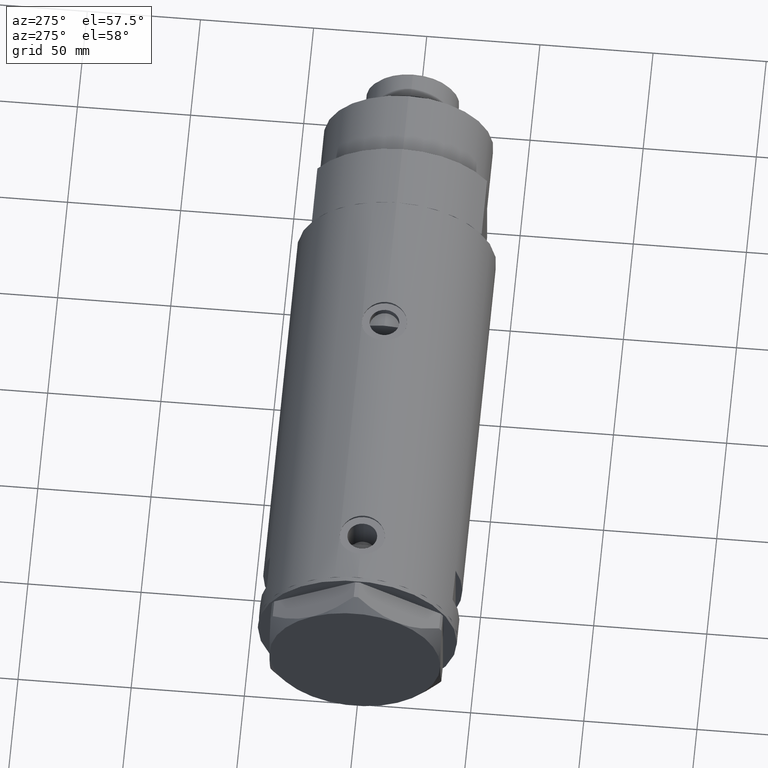
[diagram: clean part render]
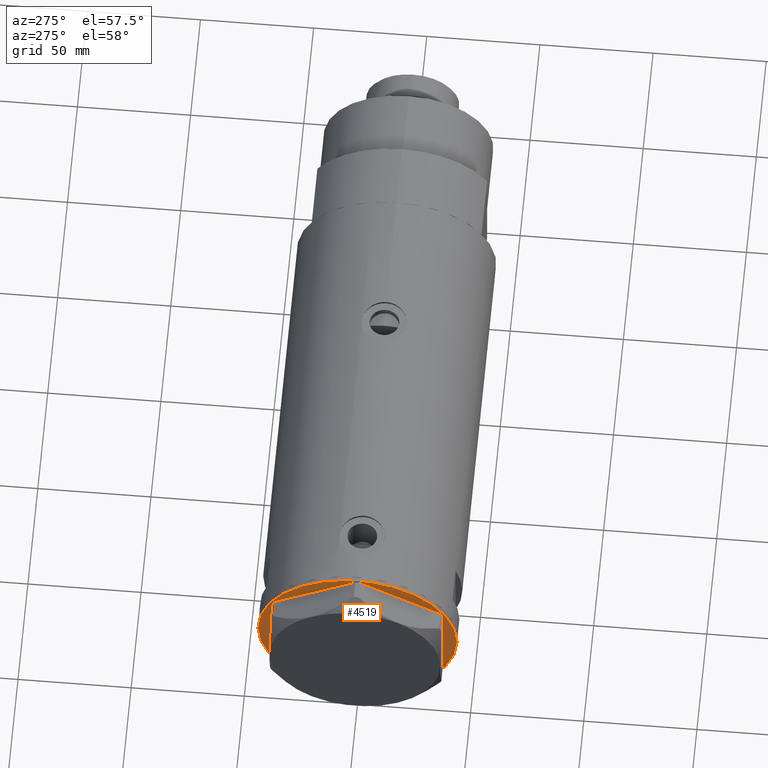
[diagram: same view with one face highlighted and labeled with its STEP entity id]
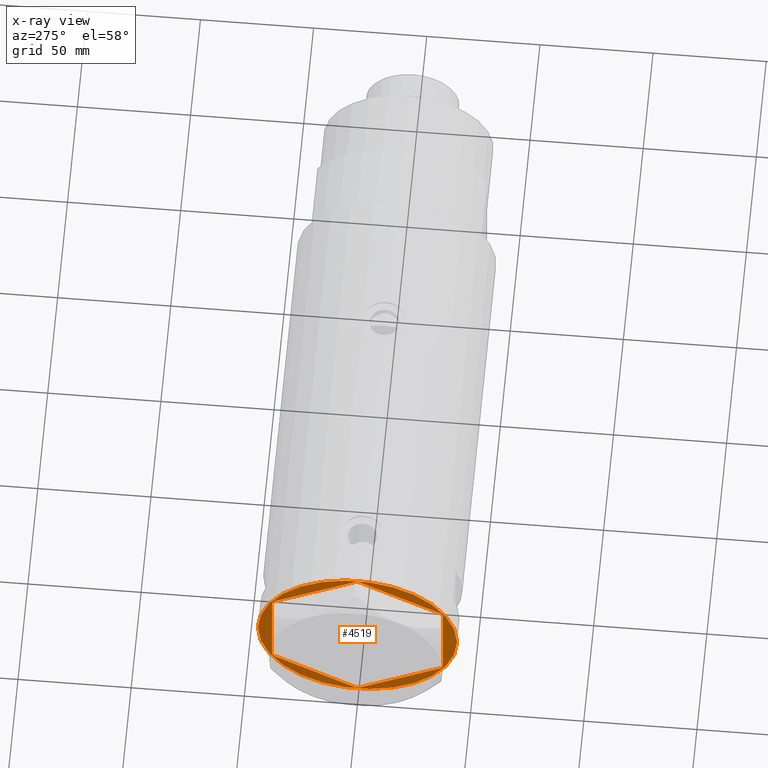
[diagram: x-ray of the same camera — body ghosted, the highlighted face saturated]
A machine part, auxiliary view. The second image highlights one B-rep face of the part: STEP entity #4519.
The next image is the same camera in x-ray: the body ghosted, the highlighted face saturated — about 0% of this face is hidden behind the body in this view.
In plain terms, the highlighted planar face has unit normal (1, 0, -0).
Its self-contained STEP definition (entity closure, byte-faithful):
#14 = CARTESIAN_POINT ( 'NONE',  ( -37.74999999999999289, -21.79497266190838189, 0.000000000000000000 ) ) ;
#179 = PLANE ( 'NONE',  #1396 ) ;
#210 = DIRECTION ( 'NONE',  ( -1.000000000000000000, 0.000000000000000000, 0.000000000000000000 ) ) ;
#218 = VERTEX_POINT ( 'NONE', #662 ) ;
#255 = DIRECTION ( 'NONE',  ( -0.5000000000000002220, 0.8660254037844385966, -0.000000000000000000 ) ) ;
#269 = ORIENTED_EDGE ( 'NONE', *, *, #1788, .F. ) ;
#271 = VECTOR ( 'NONE', #255, 999.9999999999998863 ) ;
#274 = VERTEX_POINT ( 'NONE', #1805 ) ;
#316 = VERTEX_POINT ( 'NONE', #854 ) ;
#517 = EDGE_CURVE ( 'NONE', #274, #2161, #1216, .T. ) ;
#520 = CARTESIAN_POINT ( 'NONE',  ( -37.75000000000000711, 20.67497266190837024, 0.000000000000000000 ) ) ;
#550 = EDGE_CURVE ( 'NONE', #4112, #4084, #909, .T. ) ;
#569 = EDGE_LOOP ( 'NONE', ( #4286, #806, #3315, #2984, #1425, #1776, #269, #4305, #4512, #3394, #1447, #3242 ) ) ;
#634 = VERTEX_POINT ( 'NONE', #3540 ) ;
#638 = LINE ( 'NONE', #965, #1492 ) ;
#650 = CARTESIAN_POINT ( 'NONE',  ( -37.74999999999999289, -20.67497266190837379, 0.000000000000000000 ) ) ;
#662 = CARTESIAN_POINT ( 'NONE',  ( -36.78005154776141694, -22.35497266190838772, 0.000000000000000000 ) ) ;
#667 = VERTEX_POINT ( 'NONE', #4518 ) ;
#689 = LINE ( 'NONE', #1070, #2251 ) ;
#751 = DIRECTION ( 'NONE',  ( -0.8660254037844385966, 0.5000000000000000000, 0.000000000000000000 ) ) ;
#794 = EDGE_CURVE ( 'NONE', #4108, #1476, #3013, .T. ) ;
#806 = ORIENTED_EDGE ( 'NONE', *, *, #1954, .T. ) ;
#854 = CARTESIAN_POINT ( 'NONE',  ( 36.78005154776143115, -22.35497266190837706, 0.000000000000000000 ) ) ;
#909 = LINE ( 'NONE', #2297, #3548 ) ;
#920 = CARTESIAN_POINT ( 'NONE',  ( 44.00000000000000000, 0.000000000000000000, 0.000000000000000000 ) ) ;
#931 = CARTESIAN_POINT ( 'NONE',  ( 0.000000000000000000, 0.000000000000000000, 0.000000000000000000 ) ) ;
#965 = CARTESIAN_POINT ( 'NONE',  ( 37.26502577388077242, -21.51497266190830260, 0.000000000000000000 ) ) ;
#976 = VECTOR ( 'NONE', #751, 1000.000000000000227 ) ;
#1070 = CARTESIAN_POINT ( 'NONE',  ( 37.75000000000002132, -21.79497266190837124, 0.000000000000000000 ) ) ;
#1072 = VECTOR ( 'NONE', #3036, 1000.000000000000000 ) ;
#1080 = VECTOR ( 'NONE', #4509, 1000.000000000000000 ) ;
#1153 = EDGE_CURVE ( 'NONE', #634, #316, #638, .T. ) ;
#1201 = CARTESIAN_POINT ( 'NONE',  ( 0.9699484522385760643, -43.02994532381674020, 0.000000000000000000 ) ) ;
#1207 = DIRECTION ( 'NONE',  ( 0.8660254037844388186, 0.4999999999999997224, 0.000000000000000000 ) ) ;
#1216 = LINE ( 'NONE', #2277, #1416 ) ;
#1234 = ORIENTED_EDGE ( 'NONE', *, *, #2121, .F. ) ;
#1266 = CARTESIAN_POINT ( 'NONE',  ( 0.000000000000000000, -43.02994532381674020, 0.000000000000000000 ) ) ;
#1303 = DIRECTION ( 'NONE',  ( 0.000000000000000000, 0.000000000000000000, -1.000000000000000000 ) ) ;
#1388 = VECTOR ( 'NONE', #3732, 1000.000000000000000 ) ;
#1396 = AXIS2_PLACEMENT_3D ( 'NONE', #931, #4068, #3710 ) ;
#1412 = LINE ( 'NONE', #14, #3109 ) ;
#1416 = VECTOR ( 'NONE', #2630, 1000.000000000000000 ) ;
#1425 = ORIENTED_EDGE ( 'NONE', *, *, #1488, .F. ) ;
#1447 = ORIENTED_EDGE ( 'NONE', *, *, #3475, .F. ) ;
#1476 = VERTEX_POINT ( 'NONE', #2248 ) ;
#1488 = EDGE_CURVE ( 'NONE', #4180, #316, #2573, .T. ) ;
#1492 = VECTOR ( 'NONE', #3001, 1000.000000000000227 ) ;
#1568 = VERTEX_POINT ( 'NONE', #650 ) ;
#1571 = DIRECTION ( 'NONE',  ( 0.000000000000000000, 0.000000000000000000, -1.000000000000000000 ) ) ;
#1697 = LINE ( 'NONE', #3757, #271 ) ;
#1736 = DIRECTION ( 'NONE',  ( -4.775569585389645902E-16, 1.000000000000000000, 0.000000000000000000 ) ) ;
#1776 = ORIENTED_EDGE ( 'NONE', *, *, #2654, .T. ) ;
#1788 = EDGE_CURVE ( 'NONE', #218, #3272, #1412, .T. ) ;
#1805 = CARTESIAN_POINT ( 'NONE',  ( -0.9699484522385801721, 43.02994532381674020, 0.000000000000000000 ) ) ;
#1850 = AXIS2_PLACEMENT_3D ( 'NONE', #2259, #1303, #210 ) ;
#1935 = CARTESIAN_POINT ( 'NONE',  ( 37.75000000000000000, 20.67497266190835958, 0.000000000000000000 ) ) ;
#1954 = EDGE_CURVE ( 'NONE', #667, #2812, #3945, .T. ) ;
#2116 = ORIENTED_EDGE ( 'NONE', *, *, #794, .F. ) ;
#2121 = EDGE_CURVE ( 'NONE', #1476, #4108, #2209, .T. ) ;
#2151 = EDGE_CURVE ( 'NONE', #667, #2161, #2510, .T. ) ;
#2161 = VERTEX_POINT ( 'NONE', #3328 ) ;
#2209 = CIRCLE ( 'NONE', #1850, 44.00000000000000000 ) ;
#2248 = CARTESIAN_POINT ( 'NONE',  ( -44.00000000000000000, 5.388445916248353619E-15, 0.000000000000000000 ) ) ;
#2251 = VECTOR ( 'NONE', #1736, 1000.000000000000000 ) ;
#2259 = CARTESIAN_POINT ( 'NONE',  ( 0.000000000000000000, 0.000000000000000000, 0.000000000000000000 ) ) ;
#2277 = CARTESIAN_POINT ( 'NONE',  ( 0.000000000000000000, 43.02994532381674020, 0.000000000000000000 ) ) ;
#2297 = CARTESIAN_POINT ( 'NONE',  ( -37.26502577388077242, 21.51497266190828483, 0.000000000000000000 ) ) ;
#2321 = LINE ( 'NONE', #2680, #1388 ) ;
#2325 = EDGE_LOOP ( 'NONE', ( #2116, #1234 ) ) ;
#2337 = CARTESIAN_POINT ( 'NONE',  ( -37.75000000000000711, 21.79497266190837124, 0.000000000000000000 ) ) ;
#2510 = LINE ( 'NONE', #3912, #976 ) ;
#2573 = LINE ( 'NONE', #4360, #3608 ) ;
#2575 = VECTOR ( 'NONE', #4313, 999.9999999999998863 ) ;
#2630 = DIRECTION ( 'NONE',  ( 1.000000000000000000, -0.000000000000000000, -0.000000000000000000 ) ) ;
#2654 = EDGE_CURVE ( 'NONE', #4180, #3272, #3751, .T. ) ;
#2680 = CARTESIAN_POINT ( 'NONE',  ( 0.000000000000000000, 43.58994532381674247, 0.000000000000000000 ) ) ;
#2715 = CARTESIAN_POINT ( 'NONE',  ( -36.78005154776143826, 22.35497266190836996, 0.000000000000000000 ) ) ;
#2812 = VERTEX_POINT ( 'NONE', #1935 ) ;
#2814 = DIRECTION ( 'NONE',  ( 0.8660254037844385966, -0.4999999999999998890, 0.000000000000000000 ) ) ;
#2881 = AXIS2_PLACEMENT_3D ( 'NONE', #3431, #1571, #4063 ) ;
#2965 = FACE_OUTER_BOUND ( 'NONE', #2325, .T. ) ;
#2984 = ORIENTED_EDGE ( 'NONE', *, *, #1153, .T. ) ;
#3001 = DIRECTION ( 'NONE',  ( -0.4999999999999981681, -0.8660254037844395958, -0.000000000000000000 ) ) ;
#3013 = CIRCLE ( 'NONE', #2881, 44.00000000000000000 ) ;
#3036 = DIRECTION ( 'NONE',  ( -1.000000000000000000, -0.000000000000000000, -0.000000000000000000 ) ) ;
#3109 = VECTOR ( 'NONE', #2814, 1000.000000000000227 ) ;
#3242 = ORIENTED_EDGE ( 'NONE', *, *, #517, .T. ) ;
#3272 = VERTEX_POINT ( 'NONE', #3954 ) ;
#3315 = ORIENTED_EDGE ( 'NONE', *, *, #3910, .F. ) ;
#3328 = CARTESIAN_POINT ( 'NONE',  ( 0.9699484522385850571, 43.02994532381674020, 0.000000000000000000 ) ) ;
#3370 = EDGE_CURVE ( 'NONE', #218, #1568, #1697, .T. ) ;
#3394 = ORIENTED_EDGE ( 'NONE', *, *, #550, .T. ) ;
#3431 = CARTESIAN_POINT ( 'NONE',  ( 0.000000000000000000, 0.000000000000000000, 0.000000000000000000 ) ) ;
#3475 = EDGE_CURVE ( 'NONE', #274, #4084, #2321, .T. ) ;
#3540 = CARTESIAN_POINT ( 'NONE',  ( 37.75000000000002132, -20.67497266190835958, 0.000000000000000000 ) ) ;
#3548 = VECTOR ( 'NONE', #3712, 1000.000000000000114 ) ;
#3608 = VECTOR ( 'NONE', #1207, 1000.000000000000114 ) ;
#3611 = CARTESIAN_POINT ( 'NONE',  ( 37.26502577388072979, 21.51497266190834523, 0.000000000000000000 ) ) ;
#3664 = EDGE_CURVE ( 'NONE', #4112, #1568, #3774, .T. ) ;
#3710 = DIRECTION ( 'NONE',  ( -1.000000000000000000, 0.000000000000000000, -0.000000000000000000 ) ) ;
#3712 = DIRECTION ( 'NONE',  ( 0.4999999999999978351, 0.8660254037844398178, -0.000000000000000000 ) ) ;
#3732 = DIRECTION ( 'NONE',  ( -0.8660254037844387076, -0.4999999999999998890, 0.000000000000000000 ) ) ;
#3751 = LINE ( 'NONE', #1266, #1072 ) ;
#3757 = CARTESIAN_POINT ( 'NONE',  ( -37.26502577388070847, -21.51497266190838076, 0.000000000000000000 ) ) ;
#3774 = LINE ( 'NONE', #2337, #1080 ) ;
#3910 = EDGE_CURVE ( 'NONE', #634, #2812, #689, .T. ) ;
#3912 = CARTESIAN_POINT ( 'NONE',  ( 37.75000000000000000, 21.79497266190837124, 0.000000000000000000 ) ) ;
#3945 = LINE ( 'NONE', #3611, #2575 ) ;
#3954 = CARTESIAN_POINT ( 'NONE',  ( -0.9699484522385920515, -43.02994532381674020, 0.000000000000000000 ) ) ;
#4063 = DIRECTION ( 'NONE',  ( -1.000000000000000000, 0.000000000000000000, 0.000000000000000000 ) ) ;
#4068 = DIRECTION ( 'NONE',  ( 0.000000000000000000, 0.000000000000000000, -1.000000000000000000 ) ) ;
#4084 = VERTEX_POINT ( 'NONE', #2715 ) ;
#4108 = VERTEX_POINT ( 'NONE', #920 ) ;
#4112 = VERTEX_POINT ( 'NONE', #520 ) ;
#4180 = VERTEX_POINT ( 'NONE', #1201 ) ;
#4286 = ORIENTED_EDGE ( 'NONE', *, *, #2151, .F. ) ;
#4305 = ORIENTED_EDGE ( 'NONE', *, *, #3370, .T. ) ;
#4313 = DIRECTION ( 'NONE',  ( 0.4999999999999993894, -0.8660254037844390407, -0.000000000000000000 ) ) ;
#4360 = CARTESIAN_POINT ( 'NONE',  ( -4.107234936485837051E-15, -43.58994532381674247, 0.000000000000000000 ) ) ;
#4412 = FACE_BOUND ( 'NONE', #569, .T. ) ;
#4509 = DIRECTION ( 'NONE',  ( 3.183713056926429451E-16, -1.000000000000000000, 0.000000000000000000 ) ) ;
#4512 = ORIENTED_EDGE ( 'NONE', *, *, #3664, .F. ) ;
#4518 = CARTESIAN_POINT ( 'NONE',  ( 36.78005154776142405, 22.35497266190837706, 0.000000000000000000 ) ) ;
#4519 = ADVANCED_FACE ( 'NONE', ( #4412, #2965 ), #179, .F. ) ;